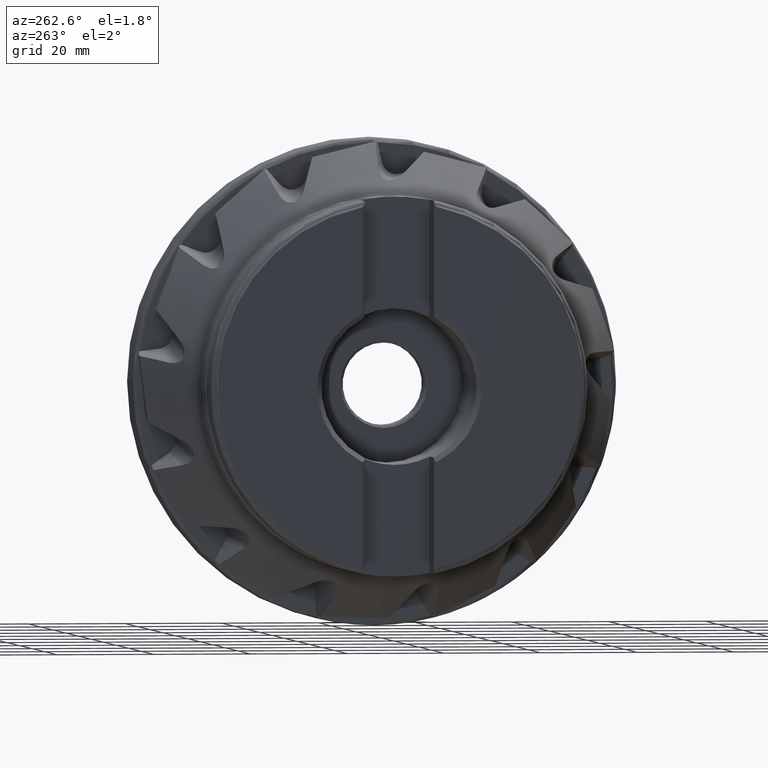
[diagram: clean part render]
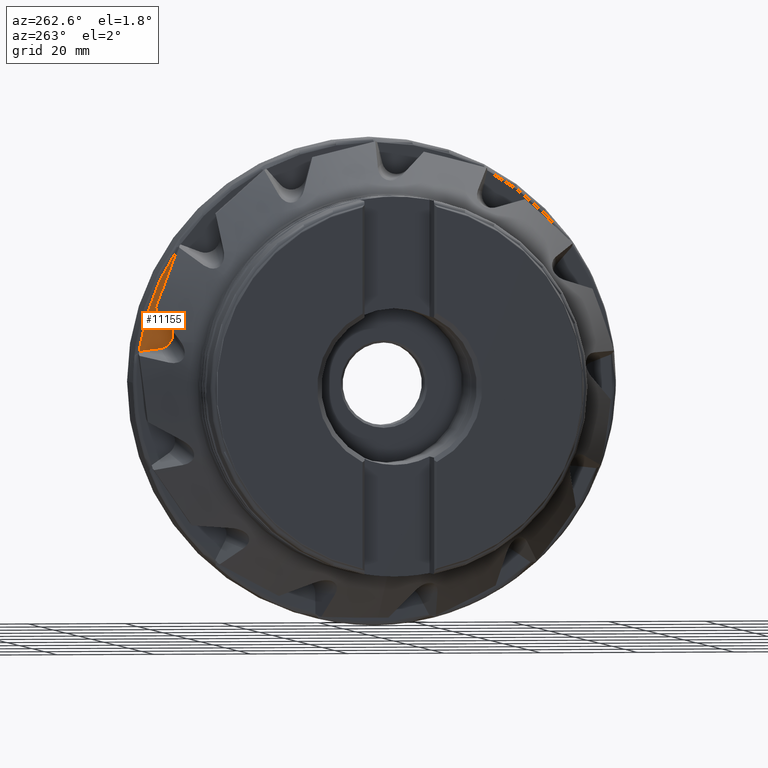
[diagram: same view with one face highlighted and labeled with its STEP entity id]
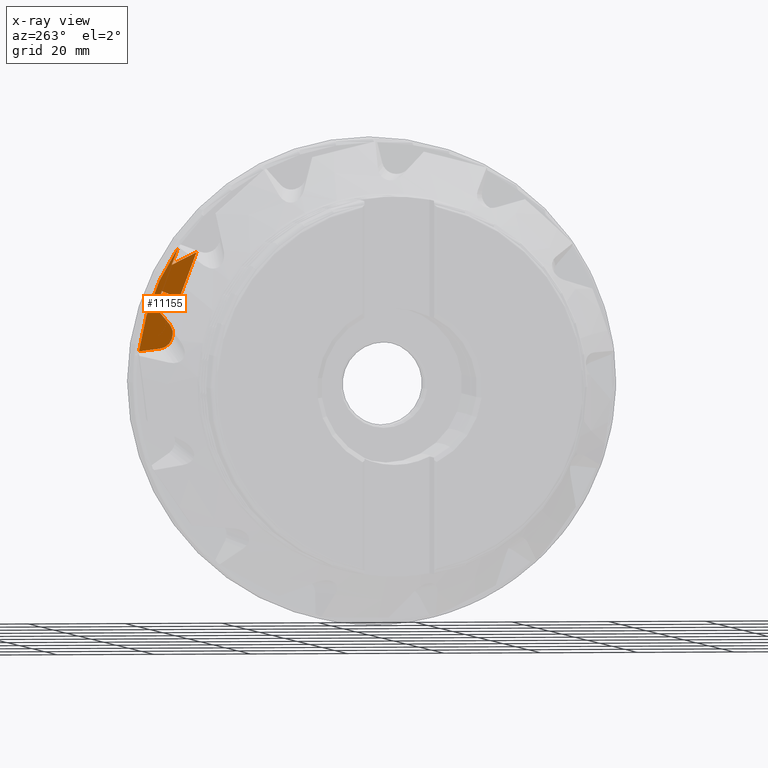
[diagram: x-ray of the same camera — body ghosted, the highlighted face saturated]
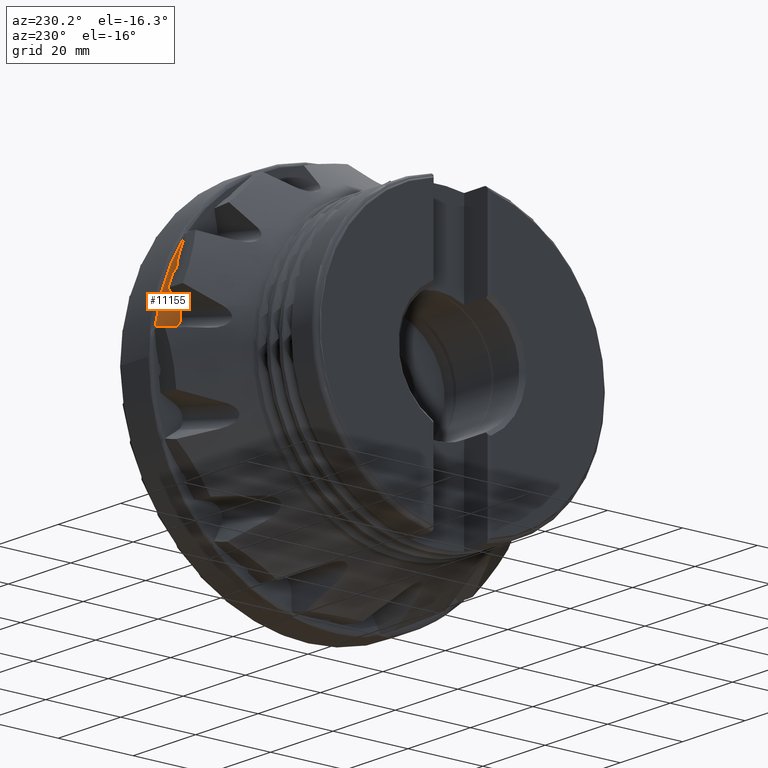
[diagram: same view with one face highlighted and labeled with its STEP entity id]
A machine part, auxiliary view. The second image highlights one B-rep face of the part: STEP entity #11155.
The next image is the same camera in x-ray: the body ghosted, the highlighted face saturated — about 0% of this face is hidden behind the body in this view.
A second angle (auxiliary view) of the same face is appended — the face is thin or edge-on in the first view.
In plain terms, the highlighted conical surface has half-angle 88.434 deg.
Its self-contained STEP definition (entity closure, byte-faithful):
#55 = CARTESIAN_POINT ( 'NONE',  ( -9.382775342755827800, 42.21002666295270700, 11.69444338316855300 ) ) ;
#168 = AXIS2_PLACEMENT_3D ( 'NONE', #12264, #6336, #350 ) ;
#259 = CARTESIAN_POINT ( 'NONE',  ( -9.413148013416993400, 44.36372429485133000, 6.986802018133881900 ) ) ;
#268 = CARTESIAN_POINT ( 'NONE',  ( -9.528597132321937800, 48.70918372282159900, 6.434448014154438200 ) ) ;
#312 = CARTESIAN_POINT ( 'NONE',  ( -9.386752138716236300, 43.33439730167609100, 7.303262878561961100 ) ) ;
#350 = DIRECTION ( 'NONE',  ( -1.213731650612787000E-016, 1.000000000000000000, 0.0000000000000000000 ) ) ;
#403 = B_SPLINE_CURVE_WITH_KNOTS ( 'NONE', 3,
 ( #11239, #9229, #7267, #1331 ),
 .UNSPECIFIED., .F., .F.,
 ( 4, 4 ),
 ( 8.314081161041499000E-005, 0.004006002389769381500 ),
 .UNSPECIFIED. ) ;
#414 = CARTESIAN_POINT ( 'NONE',  ( -9.458974316701322500, 44.34856140993858300, 14.28579432633698900 ) ) ;
#531 = VERTEX_POINT ( 'NONE', #5918 ) ;
#618 = VERTEX_POINT ( 'NONE', #11326 ) ;
#695 = CONICAL_SURFACE ( 'NONE', #2807, 42.87743856150531500, 1.543457268524203800 ) ;
#860 = VERTEX_POINT ( 'NONE', #268 ) ;
#920 = ORIENTED_EDGE ( 'NONE', *, *, #12435, .F. ) ;
#976 = ORIENTED_EDGE ( 'NONE', *, *, #11830, .T. ) ;
#982 = CARTESIAN_POINT ( 'NONE',  ( -9.451492907540515600, 45.81221808119554600, 6.802712708571775100 ) ) ;
#1022 = CARTESIAN_POINT ( 'NONE',  ( -9.528597132321937800, 48.70918372282159900, 6.434448014154438200 ) ) ;
#1066 = CARTESIAN_POINT ( 'NONE',  ( -9.391456005293891400, 42.45027529281998800, 12.01285124512345700 ) ) ;
#1181 = CARTESIAN_POINT ( 'NONE',  ( -9.493561608285727300, 45.29776537920703600, 15.42218998852565000 ) ) ;
#1197 = ORIENTED_EDGE ( 'NONE', *, *, #3171, .T. ) ;
#1331 = CARTESIAN_POINT ( 'NONE',  ( -9.493861966332502800, 44.02873602428631000, 18.76840908106767400 ) ) ;
#1352 = CARTESIAN_POINT ( 'NONE',  ( -9.366444948987753700, 42.46749183938008100, 7.946501700739238700 ) ) ;
#1390 = CARTESIAN_POINT ( 'NONE',  ( -9.429254716746157800, 36.82266234230080200, 26.72636237001980700 ) ) ;
#1441 = CARTESIAN_POINT ( 'NONE',  ( -9.493861966332502800, 44.02873602428631000, 18.76840908106767400 ) ) ;
#1525 = CARTESIAN_POINT ( 'NONE',  ( -9.529555263469749300, 40.67246296300684300, 27.62574222690248900 ) ) ;
#1857 = VERTEX_POINT ( 'NONE', #7168 ) ;
#1872 = CARTESIAN_POINT ( 'NONE',  ( -9.429254716746157800, 36.82266234230080200, 26.72636237001980700 ) ) ;
#1970 = CARTESIAN_POINT ( 'NONE',  ( -9.529233864096674700, 48.74508197251989800, 6.339927121538456100 ) ) ;
#2193 = ORIENTED_EDGE ( 'NONE', *, *, #3208, .F. ) ;
#2322 = EDGE_CURVE ( 'NONE', #3397, #9222, #2772, .T. ) ;
#2343 = CARTESIAN_POINT ( 'NONE',  ( -9.357551437929146200, 41.94263623998385500, 8.904493407042052100 ) ) ;
#2486 = CARTESIAN_POINT ( 'NONE',  ( -9.514943241696782300, 41.55499046040567600, 25.29561013252624600 ) ) ;
#2589 = VERTEX_POINT ( 'NONE', #10768 ) ;
#2652 = ORIENTED_EDGE ( 'NONE', *, *, #4867, .T. ) ;
#2772 = B_SPLINE_CURVE_WITH_KNOTS ( 'NONE', 3,
 ( #7396, #6353, #12335, #1441 ),
 .UNSPECIFIED., .F., .F.,
 ( 4, 4 ),
 ( 0.0003344691416764878100, 0.003913230316720420900 ),
 .UNSPECIFIED. ) ;
#2807 = AXIS2_PLACEMENT_3D ( 'NONE', #4998, #10933, #4028 ) ;
#2904 = EDGE_CURVE ( 'NONE', #1857, #8262, #10430, .T. ) ;
#3171 = EDGE_CURVE ( 'NONE', #4382, #2589, #8566, .T. ) ;
#3208 = EDGE_CURVE ( 'NONE', #531, #7330, #10298, .T. ) ;
#3397 = VERTEX_POINT ( 'NONE', #1181 ) ;
#3746 = ORIENTED_EDGE ( 'NONE', *, *, #8147, .T. ) ;
#3937 = DIRECTION ( 'NONE',  ( 1.000000000000000000, 1.224983210366505700E-016, -0.0000000000000000000 ) ) ;
#4028 = DIRECTION ( 'NONE',  ( 1.213731650612787000E-016, -1.000000000000000000, 0.0000000000000000000 ) ) ;
#4033 = CARTESIAN_POINT ( 'NONE',  ( -9.359812766065402900, 41.73230622848487300, 10.19910132632942600 ) ) ;
#4313 = CARTESIAN_POINT ( 'NONE',  ( -9.509537082797232100, 41.99638958691722500, 24.13058996777185400 ) ) ;
#4347 = CARTESIAN_POINT ( 'NONE',  ( -9.480823348384181100, 40.27949216615586200, 25.01102340522798400 ) ) ;
#4382 = VERTEX_POINT ( 'NONE', #9310 ) ;
#4621 = EDGE_CURVE ( 'NONE', #860, #12368, #6588, .T. ) ;
#4867 = EDGE_CURVE ( 'NONE', #12368, #1857, #11836, .T. ) ;
#4885 = CARTESIAN_POINT ( 'NONE',  ( -9.528597132321937800, 48.70918372282159900, 6.434448014154438200 ) ) ;
#4895 = EDGE_CURVE ( 'NONE', #618, #2589, #7599, .T. ) ;
#4998 = CARTESIAN_POINT ( 'NONE',  ( -9.357551437929146200, -2.240743091019970400E-015, 0.0000000000000000000 ) ) ;
#5049 = CARTESIAN_POINT ( 'NONE',  ( -9.366098159290952900, 41.82132896916851200, 10.78790487527399800 ) ) ;
#5126 = CARTESIAN_POINT ( 'NONE',  ( -9.391456005293891400, 42.45027529281998800, 12.01285124512345700 ) ) ;
#5850 = CARTESIAN_POINT ( 'NONE',  ( -9.386631313263274400, 40.41182557451904200, 17.25347885283048300 ) ) ;
#5918 = CARTESIAN_POINT ( 'NONE',  ( -9.529555263469749300, 48.76303130378016000, 6.292666774189047600 ) ) ;
#6040 = CARTESIAN_POINT ( 'NONE',  ( -9.375255346222831000, 42.01990203458795700, 11.34725862859694200 ) ) ;
#6083 = CARTESIAN_POINT ( 'NONE',  ( -9.357551437929151600, 41.74191726965026600, 9.802401759229011800 ) ) ;
#6303 = CARTESIAN_POINT ( 'NONE',  ( -9.399312268140262100, 43.83494603081662400, 7.091176030379689800 ) ) ;
#6314 = ORIENTED_EDGE ( 'NONE', *, *, #2322, .T. ) ;
#6336 = DIRECTION ( 'NONE',  ( 1.000000000000000000, 1.224983210366505700E-016, -0.0000000000000000000 ) ) ;
#6353 = CARTESIAN_POINT ( 'NONE',  ( -9.492439345569469100, 44.87466849091661900, 16.53756683153073600 ) ) ;
#6372 = ORIENTED_EDGE ( 'NONE', *, *, #10010, .T. ) ;
#6403 = CARTESIAN_POINT ( 'NONE',  ( -9.424892290393012600, 43.39939445293308800, 13.14935218740213300 ) ) ;
#6507 = CARTESIAN_POINT ( 'NONE',  ( -9.529555263469749300, 40.67246296300684300, 27.62574222690248900 ) ) ;
#6563 = ORIENTED_EDGE ( 'NONE', *, *, #4621, .T. ) ;
#6588 = B_SPLINE_CURVE_WITH_KNOTS ( 'NONE', 3,
 ( #4885, #12773, #982, #7943 ),
 .UNSPECIFIED., .F., .F.,
 ( 4, 4 ),
 ( 4.381251115974859600E-005, 0.004425757408601809300 ),
 .UNSPECIFIED. ) ;
#6984 = CARTESIAN_POINT ( 'NONE',  ( -9.528914485600804300, 48.72713277873973000, 6.387187534889218200 ) ) ;
#7032 = CARTESIAN_POINT ( 'NONE',  ( -9.386993524146078000, 42.32360373386901400, 11.86117129580018500 ) ) ;
#7168 = CARTESIAN_POINT ( 'NONE',  ( -9.357551437929146200, 41.94263623998385500, 8.904493407042052100 ) ) ;
#7267 = CARTESIAN_POINT ( 'NONE',  ( -9.458116670030687300, 42.83173535811382500, 18.24301598244374000 ) ) ;
#7287 = CARTESIAN_POINT ( 'NONE',  ( -9.381154940122263100, 43.10350657251397900, 7.440949123417853500 ) ) ;
#7304 = EDGE_LOOP ( 'NONE', ( #6563, #2652, #9250, #10265, #6372, #6314, #920, #1197, #10168, #3746, #2193, #976 ) ) ;
#7330 = VERTEX_POINT ( 'NONE', #6507 ) ;
#7337 = CARTESIAN_POINT ( 'NONE',  ( -9.453958410405180100, 38.55532589804009500, 25.87709019702074900 ) ) ;
#7396 = CARTESIAN_POINT ( 'NONE',  ( -9.493561608285727300, 45.29776537920703600, 15.42218998852565000 ) ) ;
#7398 = CARTESIAN_POINT ( 'NONE',  ( -9.493561608285727300, 45.29776537920703600, 15.42218998852565000 ) ) ;
#7465 = CARTESIAN_POINT ( 'NONE',  ( -9.521634870573022300, 41.11368293266824000, 26.46066134206277100 ) ) ;
#7557 = B_SPLINE_CURVE_WITH_KNOTS ( 'NONE', 3,
 ( #11899, #1970, #6984, #1022 ),
 .UNSPECIFIED., .F., .F.,
 ( 4, 4 ),
 ( 3.141847162197564100E-005, 0.0001830838928242107600 ),
 .UNSPECIFIED. ) ;
#7599 = B_SPLINE_CURVE_WITH_KNOTS ( 'NONE', 3,
 ( #4313, #4347, #7337, #1390 ),
 .UNSPECIFIED., .F., .F.,
 ( 4, 4 ),
 ( 0.001319296802328420700, 0.007108236966815933300 ),
 .UNSPECIFIED. ) ;
#7838 = CARTESIAN_POINT ( 'NONE',  ( -9.404991560322777400, 38.01832589144061100, 23.56851193973530200 ) ) ;
#7905 = B_SPLINE_CURVE_WITH_KNOTS ( 'NONE', 3,
 ( #10348, #6403, #414, #7398 ),
 .UNSPECIFIED., .F., .F.,
 ( 4, 4 ),
 ( 0.0005571961232279457900, 0.005000417478527826800 ),
 .UNSPECIFIED. ) ;
#7943 = CARTESIAN_POINT ( 'NONE',  ( -9.413148013416993400, 44.36372429485133000, 6.986802018133881900 ) ) ;
#7986 = CARTESIAN_POINT ( 'NONE',  ( -9.358414057758167800, 41.72755933034511600, 10.00152518218342500 ) ) ;
#8147 = EDGE_CURVE ( 'NONE', #618, #7330, #9504, .T. ) ;
#8262 = VERTEX_POINT ( 'NONE', #6083 ) ;
#8296 = CARTESIAN_POINT ( 'NONE',  ( -9.359909361583461900, 42.13862784032906500, 8.396518783413236900 ) ) ;
#8566 = B_SPLINE_CURVE_WITH_KNOTS ( 'NONE', 3,
 ( #5850, #8777, #7838, #1872 ),
 .UNSPECIFIED., .F., .F.,
 ( 4, 4 ),
 ( 7.149104902771580400E-007, 0.01013083799423170900 ),
 .UNSPECIFIED. ) ;
#8777 = CARTESIAN_POINT ( 'NONE',  ( -9.390426035426742100, 39.21468787195657800, 20.41087618189050800 ) ) ;
#8967 = CARTESIAN_POINT ( 'NONE',  ( -9.357551437929151600, 41.74191726965026600, 9.802401759229011800 ) ) ;
#9222 = VERTEX_POINT ( 'NONE', #9940 ) ;
#9229 = CARTESIAN_POINT ( 'NONE',  ( -9.422369212271078700, 41.62519455004964900, 17.73982505230337000 ) ) ;
#9250 = ORIENTED_EDGE ( 'NONE', *, *, #2904, .T. ) ;
#9310 = CARTESIAN_POINT ( 'NONE',  ( -9.386631313263274400, 40.41182557451904200, 17.25347885283048300 ) ) ;
#9504 = B_SPLINE_CURVE_WITH_KNOTS ( 'NONE', 3,
 ( #12373, #2486, #7465, #1525 ),
 .UNSPECIFIED., .F., .F.,
 ( 4, 4 ),
 ( 0.009647658055101867400, 0.01338519341078325000 ),
 .UNSPECIFIED. ) ;
#9869 = CARTESIAN_POINT ( 'NONE',  ( -9.529555263469744000, -2.261813270860574400E-015, 0.0000000000000000000 ) ) ;
#9931 = AXIS2_PLACEMENT_3D ( 'NONE', #9869, #3937, #10876 ) ;
#9940 = CARTESIAN_POINT ( 'NONE',  ( -9.493861966332502800, 44.02873602428631000, 18.76840908106767400 ) ) ;
#10010 = EDGE_CURVE ( 'NONE', #11221, #3397, #7905, .T. ) ;
#10079 = CARTESIAN_POINT ( 'NONE',  ( -9.413148013416993400, 44.36372429485133000, 6.986802018133881900 ) ) ;
#10168 = ORIENTED_EDGE ( 'NONE', *, *, #4895, .F. ) ;
#10265 = ORIENTED_EDGE ( 'NONE', *, *, #10319, .T. ) ;
#10298 = CIRCLE ( 'NONE', #9931, 49.16737614581875000 ) ;
#10319 = EDGE_CURVE ( 'NONE', #8262, #11221, #10466, .T. ) ;
#10348 = CARTESIAN_POINT ( 'NONE',  ( -9.391456005293891400, 42.45027529281998800, 12.01285124512345700 ) ) ;
#10430 = CIRCLE ( 'NONE', #168, 42.87743856150531500 ) ;
#10466 = B_SPLINE_CURVE_WITH_KNOTS ( 'NONE', 3,
 ( #8967, #7986, #4033, #10984, #5049, #11970, #6040, #55, #7032, #1066 ),
 .UNSPECIFIED., .F., .F.,
 ( 4, 2, 2, 2, 4 ),
 ( 4.821890804205399500E-005, 0.0006401847896384467700, 0.001232150671234839400, 0.001824116552831232200, 0.002416082434427624900 ),
 .UNSPECIFIED. ) ;
#10768 = CARTESIAN_POINT ( 'NONE',  ( -9.429254716746157800, 36.82266234230080200, 26.72636237001980700 ) ) ;
#10876 = DIRECTION ( 'NONE',  ( -1.058460067605822300E-016, 1.000000000000000000, 0.0000000000000000000 ) ) ;
#10933 = DIRECTION ( 'NONE',  ( -1.000000000000000000, -1.224983210366505700E-016, 0.0000000000000000000 ) ) ;
#10984 = CARTESIAN_POINT ( 'NONE',  ( -9.363637259556616900, 41.77880302366943300, 10.59125688179293700 ) ) ;
#11155 = ADVANCED_FACE ( 'NONE', ( #12505 ), #695, .F. ) ;
#11221 = VERTEX_POINT ( 'NONE', #5126 ) ;
#11239 = CARTESIAN_POINT ( 'NONE',  ( -9.386631313263274400, 40.41182557451904200, 17.25347885283048300 ) ) ;
#11326 = CARTESIAN_POINT ( 'NONE',  ( -9.509537082797232100, 41.99638958691722500, 24.13058996777185400 ) ) ;
#11830 = EDGE_CURVE ( 'NONE', #531, #860, #7557, .T. ) ;
#11836 = B_SPLINE_CURVE_WITH_KNOTS ( 'NONE', 3,
 ( #259, #12236, #6303, #312, #7287, #1352, #8296, #2343 ),
 .UNSPECIFIED., .F., .F.,
 ( 4, 2, 2, 4 ),
 ( 0.0002403443239752993900, 0.001046708188066359100, 0.001853072052157418700, 0.003465799780339555000 ),
 .UNSPECIFIED. ) ;
#11899 = CARTESIAN_POINT ( 'NONE',  ( -9.529555263469749300, 48.76303130378016000, 6.292666774189047600 ) ) ;
#11970 = CARTESIAN_POINT ( 'NONE',  ( -9.371915643565126100, 41.94216898673499100, 11.16594811939967400 ) ) ;
#12236 = CARTESIAN_POINT ( 'NONE',  ( -9.406064954692748600, 44.09615890485910200, 7.020806946819630100 ) ) ;
#12264 = CARTESIAN_POINT ( 'NONE',  ( -9.357551437929146200, -2.240743091019970400E-015, 0.0000000000000000000 ) ) ;
#12335 = CARTESIAN_POINT ( 'NONE',  ( -9.492539752742679600, 44.45165872645254300, 17.65297320266252300 ) ) ;
#12368 = VERTEX_POINT ( 'NONE', #10079 ) ;
#12373 = CARTESIAN_POINT ( 'NONE',  ( -9.509537082797232100, 41.99638958691722500, 24.13058996777185400 ) ) ;
#12435 = EDGE_CURVE ( 'NONE', #4382, #9222, #403, .T. ) ;
#12505 = FACE_OUTER_BOUND ( 'NONE', #7304, .T. ) ;
#12773 = CARTESIAN_POINT ( 'NONE',  ( -9.489987801007322000, 47.26070394178142200, 6.618592243853439200 ) ) ;